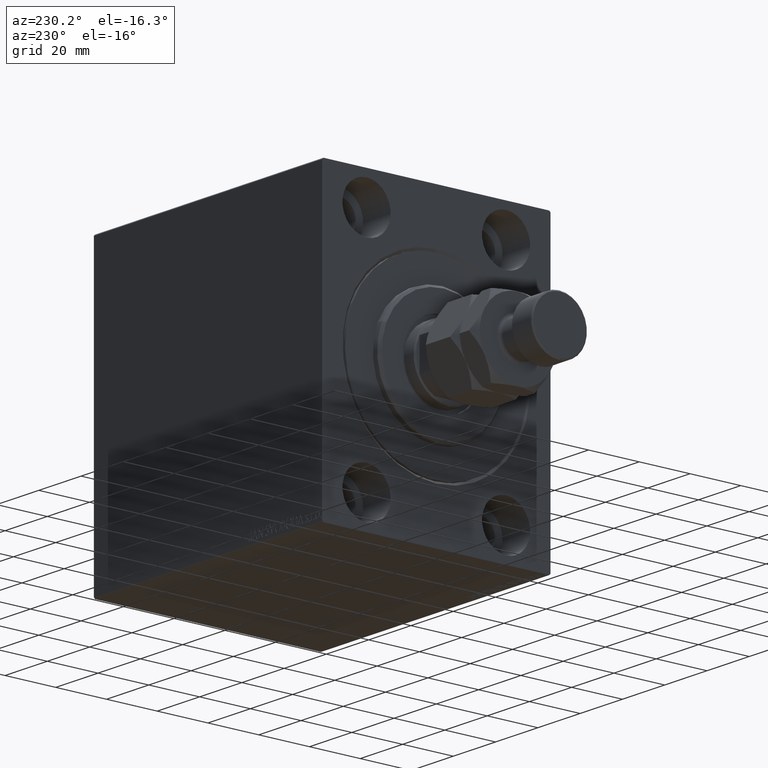
[diagram: clean part render]
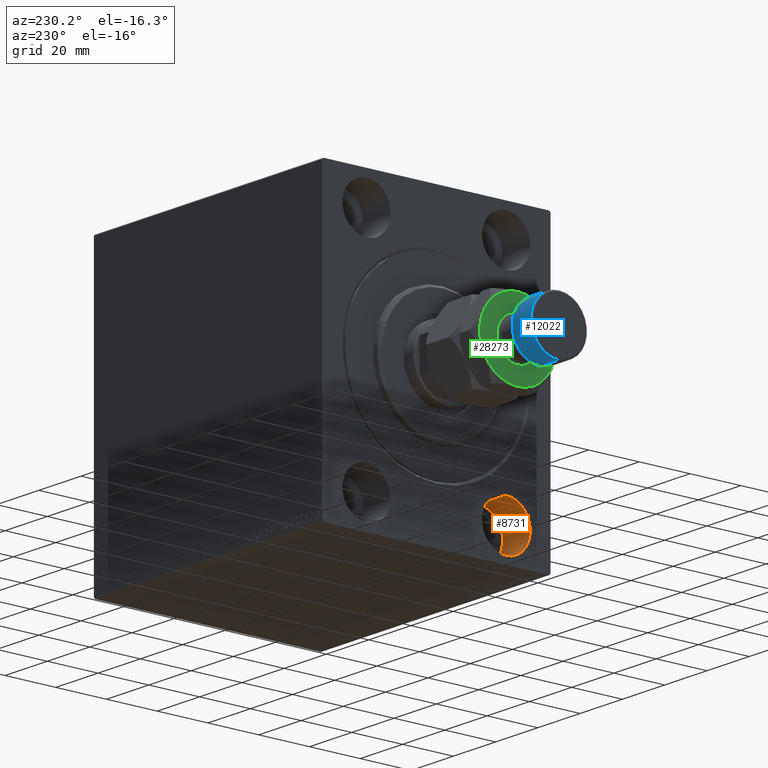
[diagram: same view with three faces highlighted in distinct colors, each labeled with its STEP entity id]
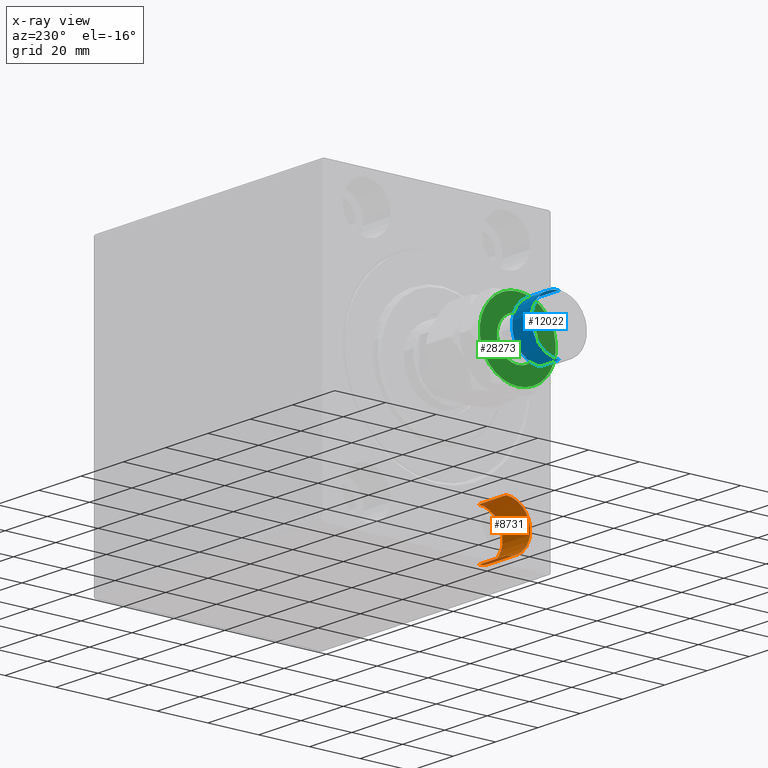
[diagram: x-ray of the same camera — body ghosted, the three highlighted faces saturated]
A machine part, auxiliary view with three faces highlighted in distinct colors.
The next image is the same camera in x-ray (body ghosted, the three faces saturated) — at least one of them is partly hidden behind the body in this view.
Their STEP definitions:

[orange] entity #8731 — the highlighted cylindrical surface (edge-blend (fillet) strip) has radius 9.5 mm, axis along (-1, -0, -0).
#660 = CIRCLE ( 'NONE', #38132, 9.500000000000001776 ) ;
#2033 = FACE_OUTER_BOUND ( 'NONE', #2296, .T. ) ;
#2107 = VERTEX_POINT ( 'NONE', #4314 ) ;
#2296 = EDGE_LOOP ( 'NONE', ( #13405, #30690, #41716, #34462 ) ) ;
#3791 = DIRECTION ( 'NONE',  ( -1.000000000000000000, -0.000000000000000000, -0.000000000000000000 ) ) ;
#4314 = CARTESIAN_POINT ( 'NONE',  ( 13.00000000000000000, -27.50000000000000000, -54.49999999999998579 ) ) ;
#5001 = DIRECTION ( 'NONE',  ( -1.000000000000000000, 0.000000000000000000, 0.000000000000000000 ) ) ;
#5253 = CARTESIAN_POINT ( 'NONE',  ( 13.00000000000000000, -27.50000000000000000, -44.99999999999998579 ) ) ;
#7330 = DIRECTION ( 'NONE',  ( -1.000000000000000000, 0.000000000000000000, 0.000000000000000000 ) ) ;
#7564 = AXIS2_PLACEMENT_3D ( 'NONE', #5253, #37220, #16046 ) ;
#8342 = VERTEX_POINT ( 'NONE', #14029 ) ;
#8731 = ADVANCED_FACE ( 'NONE', ( #2033 ), #26631, .F. ) ;
#11216 = DIRECTION ( 'NONE',  ( 0.000000000000000000, 0.000000000000000000, 1.000000000000000000 ) ) ;
#12921 = VECTOR ( 'NONE', #3791, 1000.000000000000000 ) ;
#13405 = ORIENTED_EDGE ( 'NONE', *, *, #30555, .F. ) ;
#14029 = CARTESIAN_POINT ( 'NONE',  ( 13.00000000000000000, -27.50000000000000000, -35.49999999999998579 ) ) ;
#14207 = DIRECTION ( 'NONE',  ( -1.000000000000000000, -0.000000000000000000, -0.000000000000000000 ) ) ;
#14667 = CARTESIAN_POINT ( 'NONE',  ( 13.00000000000000000, -27.50000000000000000, -54.49999999999998579 ) ) ;
#15377 = CARTESIAN_POINT ( 'NONE',  ( 0.000000000000000000, -27.50000000000000000, -35.49999999999998579 ) ) ;
#16046 = DIRECTION ( 'NONE',  ( 0.000000000000000000, 0.000000000000000000, 1.000000000000000000 ) ) ;
#17075 = AXIS2_PLACEMENT_3D ( 'NONE', #33054, #5001, #43407 ) ;
#18094 = EDGE_CURVE ( 'NONE', #8342, #45066, #39682, .T. ) ;
#18121 = LINE ( 'NONE', #14667, #26387 ) ;
#18348 = CARTESIAN_POINT ( 'NONE',  ( 13.00000000000000000, -27.50000000000000000, -44.99999999999998579 ) ) ;
#24956 = CARTESIAN_POINT ( 'NONE',  ( 13.00000000000000000, -27.50000000000000000, -35.49999999999998579 ) ) ;
#26387 = VECTOR ( 'NONE', #14207, 1000.000000000000000 ) ;
#26631 = CYLINDRICAL_SURFACE ( 'NONE', #7564, 9.500000000000001776 ) ;
#27693 = VERTEX_POINT ( 'NONE', #41934 ) ;
#30555 = EDGE_CURVE ( 'NONE', #2107, #8342, #660, .T. ) ;
#30635 = EDGE_CURVE ( 'NONE', #2107, #27693, #18121, .T. ) ;
#30690 = ORIENTED_EDGE ( 'NONE', *, *, #30635, .T. ) ;
#31069 = CIRCLE ( 'NONE', #17075, 9.500000000000001776 ) ;
#33054 = CARTESIAN_POINT ( 'NONE',  ( 0.000000000000000000, -27.50000000000000000, -44.99999999999998579 ) ) ;
#34462 = ORIENTED_EDGE ( 'NONE', *, *, #18094, .F. ) ;
#37220 = DIRECTION ( 'NONE',  ( -1.000000000000000000, -0.000000000000000000, -0.000000000000000000 ) ) ;
#38132 = AXIS2_PLACEMENT_3D ( 'NONE', #18348, #7330, #11216 ) ;
#38815 = EDGE_CURVE ( 'NONE', #27693, #45066, #31069, .T. ) ;
#39682 = LINE ( 'NONE', #24956, #12921 ) ;
#41716 = ORIENTED_EDGE ( 'NONE', *, *, #38815, .T. ) ;
#41934 = CARTESIAN_POINT ( 'NONE',  ( 0.000000000000000000, -27.50000000000000000, -54.49999999999998579 ) ) ;
#43407 = DIRECTION ( 'NONE',  ( 0.000000000000000000, 0.000000000000000000, 1.000000000000000000 ) ) ;
#45066 = VERTEX_POINT ( 'NONE', #15377 ) ;

[blue] entity #12022 — the highlighted cylindrical surface (edge-blend (fillet) strip) has radius 11 mm, axis along (1, -0, -0).
#962 = CYLINDRICAL_SURFACE ( 'NONE', #20109, 11.00000000000000000 ) ;
#1118 = LINE ( 'NONE', #7553, #21172 ) ;
#2362 = DIRECTION ( 'NONE',  ( -0.000000000000000000, -0.000000000000000000, 1.000000000000000000 ) ) ;
#5631 = ORIENTED_EDGE ( 'NONE', *, *, #33643, .T. ) ;
#5849 = EDGE_CURVE ( 'NONE', #38162, #22655, #12728, .T. ) ;
#7239 = LINE ( 'NONE', #30938, #11322 ) ;
#7553 = CARTESIAN_POINT ( 'NONE',  ( 11.00000000000000000, 1.347111479062088405E-15, 45.00000000000000711 ) ) ;
#8105 = DIRECTION ( 'NONE',  ( -1.000000000000000000, 0.000000000000000000, 0.000000000000000000 ) ) ;
#11322 = VECTOR ( 'NONE', #42422, 1000.000000000000000 ) ;
#12022 = ADVANCED_FACE ( 'NONE', ( #29251 ), #962, .T. ) ;
#12265 = CARTESIAN_POINT ( 'NONE',  ( 0.000000000000000000, 0.000000000000000000, 44.50000000000001421 ) ) ;
#12728 = CIRCLE ( 'NONE', #40690, 11.00000000000000000 ) ;
#13242 = EDGE_CURVE ( 'NONE', #22571, #22655, #7239, .T. ) ;
#16012 = CARTESIAN_POINT ( 'NONE',  ( -11.00000000000000000, 0.000000000000000000, 44.50000000000001421 ) ) ;
#16911 = AXIS2_PLACEMENT_3D ( 'NONE', #12265, #26989, #37799 ) ;
#16931 = ORIENTED_EDGE ( 'NONE', *, *, #5849, .T. ) ;
#18787 = VERTEX_POINT ( 'NONE', #32766 ) ;
#20109 = AXIS2_PLACEMENT_3D ( 'NONE', #39843, #22127, #8105 ) ;
#21172 = VECTOR ( 'NONE', #42741, 1000.000000000000000 ) ;
#22127 = DIRECTION ( 'NONE',  ( -0.000000000000000000, -0.000000000000000000, -1.000000000000000000 ) ) ;
#22571 = VERTEX_POINT ( 'NONE', #16012 ) ;
#22655 = VERTEX_POINT ( 'NONE', #30505 ) ;
#26989 = DIRECTION ( 'NONE',  ( 0.000000000000000000, 0.000000000000000000, -1.000000000000000000 ) ) ;
#27428 = ORIENTED_EDGE ( 'NONE', *, *, #13242, .F. ) ;
#29251 = FACE_OUTER_BOUND ( 'NONE', #40637, .T. ) ;
#29378 = EDGE_CURVE ( 'NONE', #18787, #38162, #1118, .T. ) ;
#30505 = CARTESIAN_POINT ( 'NONE',  ( -11.00000000000000000, 0.000000000000000000, 35.50000000000001421 ) ) ;
#30938 = CARTESIAN_POINT ( 'NONE',  ( -11.00000000000000000, 0.000000000000000000, 45.00000000000000711 ) ) ;
#32766 = CARTESIAN_POINT ( 'NONE',  ( 11.00000000000000000, 1.347111479062088405E-15, 44.50000000000001421 ) ) ;
#33082 = CIRCLE ( 'NONE', #16911, 11.00000000000000000 ) ;
#33239 = ORIENTED_EDGE ( 'NONE', *, *, #29378, .T. ) ;
#33643 = EDGE_CURVE ( 'NONE', #22571, #18787, #33082, .T. ) ;
#34095 = DIRECTION ( 'NONE',  ( 1.000000000000000000, 0.000000000000000000, 0.000000000000000000 ) ) ;
#37799 = DIRECTION ( 'NONE',  ( 1.000000000000000000, 0.000000000000000000, 0.000000000000000000 ) ) ;
#38162 = VERTEX_POINT ( 'NONE', #42822 ) ;
#39843 = CARTESIAN_POINT ( 'NONE',  ( 0.000000000000000000, 0.000000000000000000, 45.00000000000000711 ) ) ;
#40637 = EDGE_LOOP ( 'NONE', ( #5631, #33239, #16931, #27428 ) ) ;
#40690 = AXIS2_PLACEMENT_3D ( 'NONE', #44689, #2362, #34095 ) ;
#42422 = DIRECTION ( 'NONE',  ( -0.000000000000000000, -0.000000000000000000, -1.000000000000000000 ) ) ;
#42741 = DIRECTION ( 'NONE',  ( -0.000000000000000000, -0.000000000000000000, -1.000000000000000000 ) ) ;
#42822 = CARTESIAN_POINT ( 'NONE',  ( 11.00000000000000000, 1.347111479062088405E-15, 35.50000000000001421 ) ) ;
#44689 = CARTESIAN_POINT ( 'NONE',  ( 0.000000000000000000, 0.000000000000000000, 35.50000000000001421 ) ) ;

[green] entity #28273 — the highlighted planar face has unit normal (-1, 0, 0).
#978 = CARTESIAN_POINT ( 'NONE',  ( 7.499999999999998224, 12.99038105676657651, 25.00000000000000000 ) ) ;
#1526 = ORIENTED_EDGE ( 'NONE', *, *, #24085, .T. ) ;
#1588 = DIRECTION ( 'NONE',  ( 1.000000000000000000, 0.000000000000000000, 0.000000000000000000 ) ) ;
#3360 = CIRCLE ( 'NONE', #29070, 14.99999999999999645 ) ;
#3392 = CARTESIAN_POINT ( 'NONE',  ( 0.000000000000000000, 0.000000000000000000, 25.00000000000000000 ) ) ;
#3415 = FACE_OUTER_BOUND ( 'NONE', #40376, .T. ) ;
#4825 = CIRCLE ( 'NONE', #12892, 14.99999999999999645 ) ;
#4990 = AXIS2_PLACEMENT_3D ( 'NONE', #36677, #12502, #11816 ) ;
#5729 = DIRECTION ( 'NONE',  ( 1.000000000000000000, 0.000000000000000000, 0.000000000000000000 ) ) ;
#6303 = CIRCLE ( 'NONE', #7014, 14.99999999999999645 ) ;
#6467 = DIRECTION ( 'NONE',  ( 1.000000000000000000, 0.000000000000000000, 0.000000000000000000 ) ) ;
#7014 = AXIS2_PLACEMENT_3D ( 'NONE', #3392, #21089, #34457 ) ;
#7910 = ORIENTED_EDGE ( 'NONE', *, *, #26691, .T. ) ;
#8257 = CIRCLE ( 'NONE', #19281, 14.99999999999999645 ) ;
#9876 = FACE_BOUND ( 'NONE', #22448, .T. ) ;
#10457 = EDGE_CURVE ( 'NONE', #17156, #13254, #32552, .T. ) ;
#10684 = DIRECTION ( 'NONE',  ( 0.000000000000000000, -0.000000000000000000, 1.000000000000000000 ) ) ;
#11816 = DIRECTION ( 'NONE',  ( 1.000000000000000000, 0.000000000000000000, 0.000000000000000000 ) ) ;
#12173 = CARTESIAN_POINT ( 'NONE',  ( 0.000000000000000000, 0.000000000000000000, 25.00000000000000000 ) ) ;
#12312 = CARTESIAN_POINT ( 'NONE',  ( -7.500000000000000888, -12.99038105676657828, 25.00000000000000000 ) ) ;
#12502 = DIRECTION ( 'NONE',  ( 0.000000000000000000, -0.000000000000000000, 1.000000000000000000 ) ) ;
#12892 = AXIS2_PLACEMENT_3D ( 'NONE', #35125, #38136, #38352 ) ;
#13254 = VERTEX_POINT ( 'NONE', #20797 ) ;
#13681 = VERTEX_POINT ( 'NONE', #39910 ) ;
#14172 = AXIS2_PLACEMENT_3D ( 'NONE', #22110, #30552, #18652 ) ;
#14496 = AXIS2_PLACEMENT_3D ( 'NONE', #25961, #19061, #1588 ) ;
#14654 = VERTEX_POINT ( 'NONE', #31926 ) ;
#14926 = DIRECTION ( 'NONE',  ( -0.000000000000000000, 0.000000000000000000, -1.000000000000000000 ) ) ;
#15274 = AXIS2_PLACEMENT_3D ( 'NONE', #20886, #41167, #20658 ) ;
#16634 = EDGE_CURVE ( 'NONE', #19807, #14654, #4825, .T. ) ;
#16678 = EDGE_CURVE ( 'NONE', #38263, #40440, #6303, .T. ) ;
#17156 = VERTEX_POINT ( 'NONE', #26271 ) ;
#17312 = EDGE_CURVE ( 'NONE', #13681, #38263, #3360, .T. ) ;
#17462 = CARTESIAN_POINT ( 'NONE',  ( 0.000000000000000000, 0.000000000000000000, 25.00000000000000000 ) ) ;
#18652 = DIRECTION ( 'NONE',  ( 1.000000000000000000, 0.000000000000000000, 0.000000000000000000 ) ) ;
#19061 = DIRECTION ( 'NONE',  ( 0.000000000000000000, -0.000000000000000000, 1.000000000000000000 ) ) ;
#19281 = AXIS2_PLACEMENT_3D ( 'NONE', #35070, #10684, #5729 ) ;
#19807 = VERTEX_POINT ( 'NONE', #40216 ) ;
#20658 = DIRECTION ( 'NONE',  ( 1.000000000000000000, 0.000000000000000000, -0.000000000000000000 ) ) ;
#20797 = CARTESIAN_POINT ( 'NONE',  ( 8.200000000000001066, 0.000000000000000000, 25.00000000000000000 ) ) ;
#20886 = CARTESIAN_POINT ( 'NONE',  ( 0.000000000000000000, 0.000000000000000000, 25.00000000000000000 ) ) ;
#21089 = DIRECTION ( 'NONE',  ( 0.000000000000000000, 0.000000000000000000, 1.000000000000000000 ) ) ;
#21822 = ORIENTED_EDGE ( 'NONE', *, *, #16678, .T. ) ;
#22110 = CARTESIAN_POINT ( 'NONE',  ( 0.000000000000000000, 0.000000000000000000, 25.00000000000000000 ) ) ;
#22448 = EDGE_LOOP ( 'NONE', ( #1526, #25603 ) ) ;
#22801 = EDGE_CURVE ( 'NONE', #14654, #30931, #35832, .T. ) ;
#24085 = EDGE_CURVE ( 'NONE', #13254, #17156, #34401, .T. ) ;
#24830 = AXIS2_PLACEMENT_3D ( 'NONE', #12173, #14926, #36348 ) ;
#25603 = ORIENTED_EDGE ( 'NONE', *, *, #10457, .T. ) ;
#25961 = CARTESIAN_POINT ( 'NONE',  ( 0.000000000000000000, 0.000000000000000000, 25.00000000000000000 ) ) ;
#26271 = CARTESIAN_POINT ( 'NONE',  ( -8.200000000000001066, 1.004210375300829674E-15, 25.00000000000000000 ) ) ;
#26691 = EDGE_CURVE ( 'NONE', #30931, #13681, #29197, .T. ) ;
#28273 = ADVANCED_FACE ( 'NONE', ( #9876, #3415 ), #34261, .T. ) ;
#29070 = AXIS2_PLACEMENT_3D ( 'NONE', #17462, #41650, #6467 ) ;
#29197 = CIRCLE ( 'NONE', #14496, 14.99999999999999645 ) ;
#30552 = DIRECTION ( 'NONE',  ( -0.000000000000000000, 0.000000000000000000, -1.000000000000000000 ) ) ;
#30931 = VERTEX_POINT ( 'NONE', #12312 ) ;
#31926 = CARTESIAN_POINT ( 'NONE',  ( -14.99999999999999645, 0.000000000000000000, 25.00000000000000000 ) ) ;
#32552 = CIRCLE ( 'NONE', #14172, 8.200000000000001066 ) ;
#32554 = ORIENTED_EDGE ( 'NONE', *, *, #37812, .T. ) ;
#33361 = ORIENTED_EDGE ( 'NONE', *, *, #17312, .T. ) ;
#33806 = ORIENTED_EDGE ( 'NONE', *, *, #22801, .T. ) ;
#33845 = CARTESIAN_POINT ( 'NONE',  ( 14.99999999999999645, 1.502314598737159426E-15, 25.00000000000000000 ) ) ;
#34261 = PLANE ( 'NONE',  #15274 ) ;
#34401 = CIRCLE ( 'NONE', #24830, 8.200000000000001066 ) ;
#34457 = DIRECTION ( 'NONE',  ( 1.000000000000000000, 0.000000000000000000, 0.000000000000000000 ) ) ;
#35070 = CARTESIAN_POINT ( 'NONE',  ( 0.000000000000000000, 0.000000000000000000, 25.00000000000000000 ) ) ;
#35125 = CARTESIAN_POINT ( 'NONE',  ( 0.000000000000000000, 0.000000000000000000, 25.00000000000000000 ) ) ;
#35832 = CIRCLE ( 'NONE', #4990, 14.99999999999999645 ) ;
#36348 = DIRECTION ( 'NONE',  ( 1.000000000000000000, 0.000000000000000000, 0.000000000000000000 ) ) ;
#36677 = CARTESIAN_POINT ( 'NONE',  ( 0.000000000000000000, 0.000000000000000000, 25.00000000000000000 ) ) ;
#37812 = EDGE_CURVE ( 'NONE', #40440, #19807, #8257, .T. ) ;
#38136 = DIRECTION ( 'NONE',  ( 0.000000000000000000, -0.000000000000000000, 1.000000000000000000 ) ) ;
#38263 = VERTEX_POINT ( 'NONE', #33845 ) ;
#38352 = DIRECTION ( 'NONE',  ( 1.000000000000000000, 0.000000000000000000, 0.000000000000000000 ) ) ;
#39301 = ORIENTED_EDGE ( 'NONE', *, *, #16634, .T. ) ;
#39910 = CARTESIAN_POINT ( 'NONE',  ( 7.500000000000001776, -12.99038105676657473, 25.00000000000000000 ) ) ;
#40216 = CARTESIAN_POINT ( 'NONE',  ( -7.500000000000000000, 12.99038105676657651, 25.00000000000000000 ) ) ;
#40376 = EDGE_LOOP ( 'NONE', ( #33361, #21822, #32554, #39301, #33806, #7910 ) ) ;
#40440 = VERTEX_POINT ( 'NONE', #978 ) ;
#41167 = DIRECTION ( 'NONE',  ( 0.000000000000000000, -0.000000000000000000, 1.000000000000000000 ) ) ;
#41650 = DIRECTION ( 'NONE',  ( 0.000000000000000000, -0.000000000000000000, 1.000000000000000000 ) ) ;